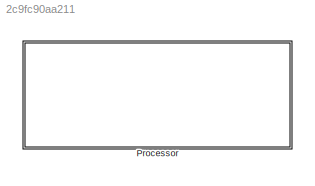
MODEL slx_2c9fc90aa211
KIND model
CONFIG AbsTol = auto
CONFIG EnableMultiTasking = on
CONFIG FixedStep = auto
CONFIG MaxStep = auto
CONFIG MinStep = auto
CONFIG RelTol = 1e-3
CONFIG SampleTimeConstraint = Unconstrained
CONFIG SolverName = ode45
CONFIG StartTime = 0.0
CONFIG StopTime = 10.0
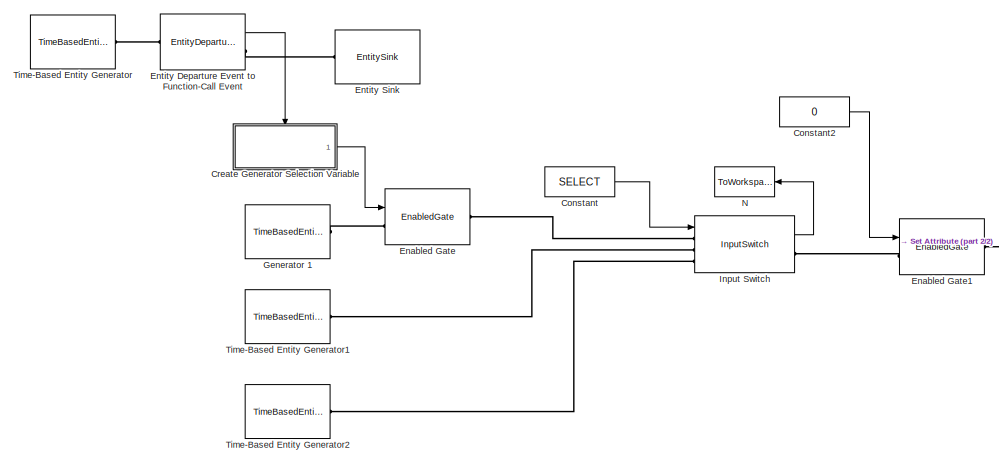
[diagram: Processor - part 1/2, left side, full height]
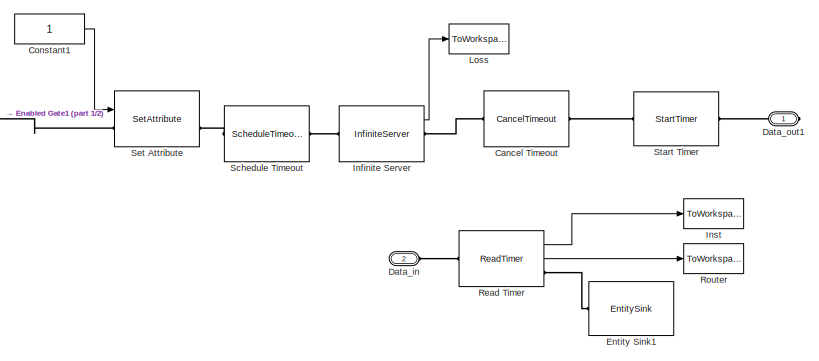
[diagram: Processor - part 2/2, middle right region]
BLOCK [SubSystem] Processor
  Ports = [0, 0, 0, 0, 0, 1, 1]
  RequestExecContextInheritance = off
BLOCK [CancelTimeout] Processor/Cancel Timeout
  Ports = [0, 0, 0, 0, 0, 1, 1]
BLOCK [Constant] Processor/Constant
  Value = SELECT
BLOCK [Constant] Processor/Constant1
BLOCK [Constant] Processor/Constant2
  Value = 0
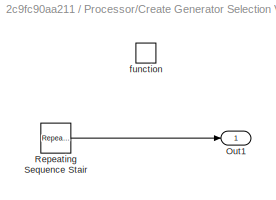
BLOCK [SubSystem] Processor/Create Generator Selection Variable
  Ports = [0, 1, 0, 1]
  RequestExecContextInheritance = off
  TreatAsAtomicUnit = on
BLOCK [Outport] Processor/Create Generator Selection Variable/Out1
BLOCK [Reference] Processor/Create Generator Selection Variable/Repeating Sequence Stair  REF=simulink/Sources/Repeating
Sequence
Stair
  Ports = [0, 1]
  SourceBlock = simulink/Sources/Repeating\nSequence\nStair
  SourceProductBaseCode = SL
  SourceType = Repeating Sequence Stair
BLOCK [TriggerPort] Processor/Create Generator Selection Variable/function
  Ports = []
  StatesWhenEnabling = held
  TriggerType = function-call
  VariantControl = (inherit)
BLOCK [PMIOPort] Processor/Data_in
  Port = 2
  Side = Left
BLOCK [PMIOPort] Processor/Data_out1
  Side = Right
BLOCK [EnabledGate] Processor/Enabled Gate
  InputPortMap = u0
  Ports = [1, 0, 0, 0, 0, 1, 1]
BLOCK [EnabledGate] Processor/Enabled Gate1
  InputPortMap = u0
  Ports = [1, 0, 0, 0, 0, 1, 1]
BLOCK [EntityDepartureFunctionCallGenerator] Processor/Entity Departure Event to Function-Call Event
  OutputPortMap = o0
  Ports = [0, 1, 0, 0, 0, 1, 1]
BLOCK [EntitySink] Processor/Entity Sink
  Ports = [0, 0, 0, 0, 0, 1]
BLOCK [EntitySink] Processor/Entity Sink1
  Ports = [0, 0, 0, 0, 0, 1]
BLOCK [TimeBasedEntityGenerator] Processor/Generator 1
  Distribution = Exponential
  EntityType = Standard
  InitialSeed = SEED+10
  Maximum = .2
  Mean = B
  Period = .1
  Ports = [0, 0, 0, 0, 0, 0, 1]
  ResponseWhenUnblocked = Delayed restart
BLOCK [InfiniteServer] Processor/Infinite Server
  EnableTOPort = on
  OutputPortMap = o5
  Ports = [0, 1, 0, 0, 0, 1, 2]
  ServiceTime = D
  StatNumberTimedout = on
BLOCK [InputSwitch] Processor/Input Switch
  InputPortMap = u0
  OutputPortMap = o0
  Ports = [1, 1, 0, 0, 0, 3, 1]
  StatNumberDeparted = on
  SwitchingCriterion = From signal port p
BLOCK [ToWorkspace] Processor/Inst
  FixptAsFi = on
  MaxDataPoints = inf
  Ports = [1]
  SampleTime = -1
  SaveFormat = Timeseries
  VariableName = Inst1
BLOCK [ToWorkspace] Processor/Loss
  FixptAsFi = on
  MaxDataPoints = inf
  Ports = [1]
  SampleTime = -1
  SaveFormat = Timeseries
  VariableName = Loss1
BLOCK [ToWorkspace] Processor/N
  FixptAsFi = on
  MaxDataPoints = inf
  NameLocation = top
  Ports = [1]
  SampleTime = -1
  SaveFormat = Timeseries
  VariableName = N1
BLOCK [ReadTimer] Processor/Read Timer
  OutputPortMap = o2,o3
  Ports = [0, 2, 0, 0, 0, 1, 1]
  StatAverageTimeElapsed = on
  StatTimeElapsed = on
  TimerTag = Departure
BLOCK [ToWorkspace] Processor/Router
  FixptAsFi = on
  MaxDataPoints = inf
  Ports = [1]
  SampleTime = -1
  SaveFormat = Timeseries
  VariableName = Mean1
BLOCK [ScheduleTimeout] Processor/Schedule Timeout
  Ports = [0, 0, 0, 0, 0, 1, 1]
  TimeoutInterval = D
BLOCK [SetAttribute] Processor/Set Attribute
  AttributeFrom = Signal port|Dialog
  AttributeName = DST|SRC
  AttributeTreatAsVector = 0|0
  AttributeValue = 16|1
  EvaluatedAttributeValue = { [];1}
  InputPortMap = u0
  OutputPortMap = o0
  Ports = [1, 1, 0, 0, 0, 1, 1]
  StatNumberDeparted = on
BLOCK [StartTimer] Processor/Start Timer
  Ports = [0, 0, 0, 0, 0, 1, 1]
  TimerTag = Departure
BLOCK [TimeBasedEntityGenerator] Processor/Time-Based Entity Generator
  Distribution = Exponential
  EntityType = Standard
  InitialSeed = SEED
  Maximum = 2
  Mean = A
  Period = 15
  Ports = [0, 0, 0, 0, 0, 0, 1]
  PriorityEntityGeneration = 350
BLOCK [TimeBasedEntityGenerator] Processor/Time-Based Entity Generator1
  Period = REGULAR
  Ports = [0, 0, 0, 0, 0, 0, 1]
BLOCK [TimeBasedEntityGenerator] Processor/Time-Based Entity Generator2
  Distribution = Uniform
  InitialSeed = SEED
  Maximum = MAXU
  Minimum = MINU
  Ports = [0, 0, 0, 0, 0, 0, 1]
LINE Processor/Constant1:1 -> Processor/Set Attribute:1
LINE Processor/Constant2:1 -> Processor/Enabled Gate1:1
LINE Processor/Constant:1 -> Processor/Input Switch:1
LINE Processor/Create Generator Selection Variable/Repeating Sequence Stair:1 -> Processor/Create Generator Selection Variable/Out1:1
LINE Processor/Create Generator Selection Variable:1 -> Processor/Enabled Gate:1
LINE Processor/Entity Departure Event to Function-Call Event:1 -> Processor/Create Generator Selection Variable:trigger
LINE Processor/Infinite Server:1 -> Processor/Loss:1
LINE Processor/Input Switch:1 -> Processor/N:1
LINE Processor/Read Timer:1 -> Processor/Inst:1
LINE Processor/Read Timer:2 -> Processor/Router:1
PLINE Processor/Cancel Timeout:LConn1 -- Processor/Infinite Server:RConn1
PLINE Processor/Cancel Timeout:RConn1 -- Processor/Start Timer:LConn1
PLINE Processor/Data_in:RConn1 -- Processor/Read Timer:LConn1
PLINE Processor/Data_out1:RConn1 -- Processor/Start Timer:RConn1
PLINE Processor/Enabled Gate1:LConn1 -- Processor/Input Switch:RConn1
PLINE Processor/Enabled Gate1:RConn1 -- Processor/Set Attribute:LConn1
PLINE Processor/Enabled Gate:LConn1 -- Processor/Generator 1:RConn1
PLINE Processor/Enabled Gate:RConn1 -- Processor/Input Switch:LConn1
PLINE Processor/Entity Departure Event to Function-Call Event:LConn1 -- Processor/Time-Based Entity Generator:RConn1
PLINE Processor/Entity Departure Event to Function-Call Event:RConn1 -- Processor/Entity Sink:LConn1
PLINE Processor/Entity Sink1:LConn1 -- Processor/Read Timer:RConn1
PLINE Processor/Infinite Server:LConn1 -- Processor/Schedule Timeout:RConn1
PLINE Processor/Input Switch:LConn2 -- Processor/Time-Based Entity Generator1:RConn1
PLINE Processor/Input Switch:LConn3 -- Processor/Time-Based Entity Generator2:RConn1
PLINE Processor/Schedule Timeout:LConn1 -- Processor/Set Attribute:RConn1
